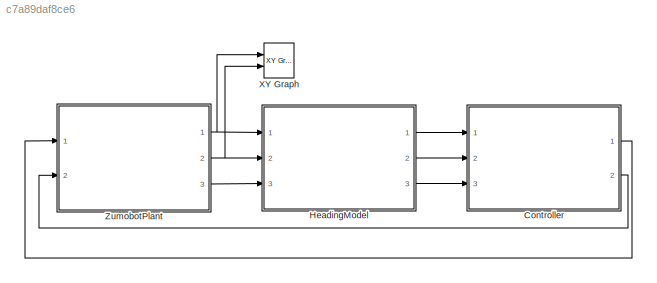
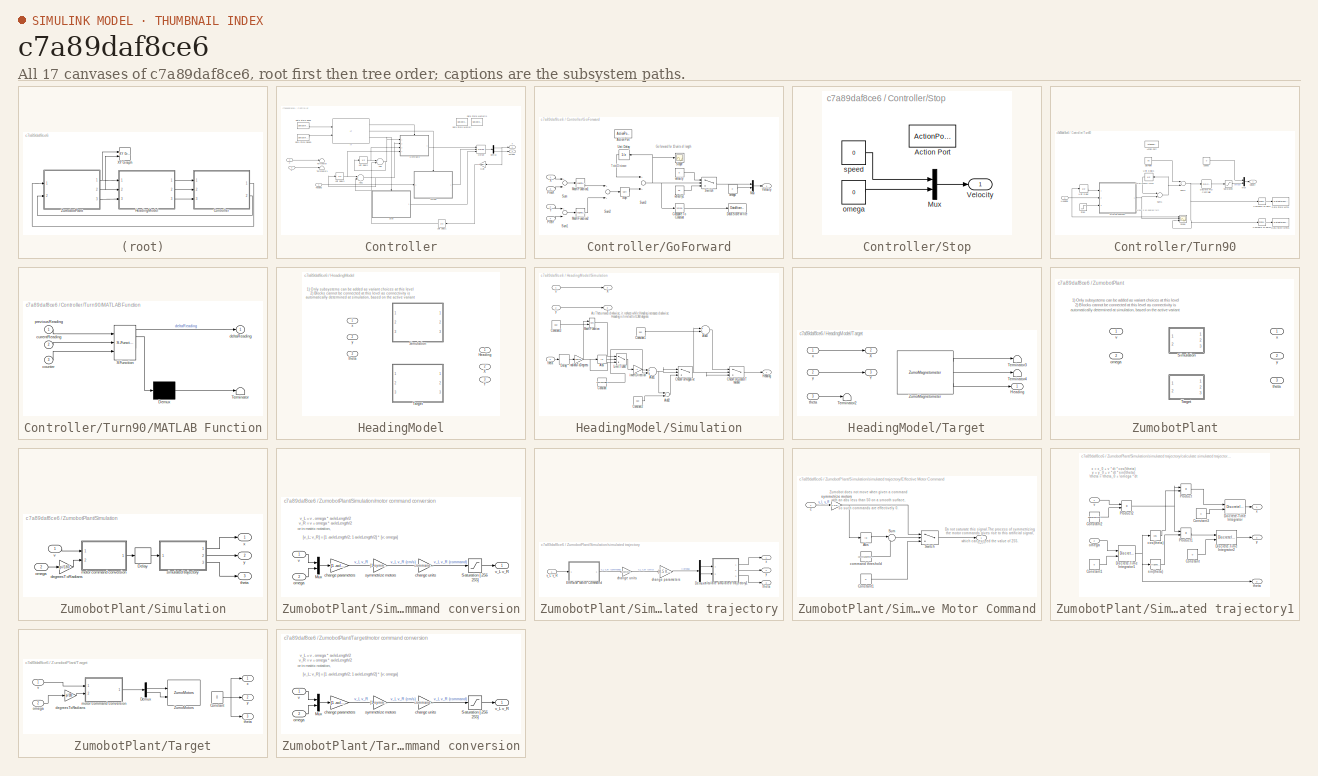
[diagram: thumbnail index - all 17 canvases of the model, root first then tree order]
MODEL slx_c7a89daf8ce6
KIND model
CONFIG PreLoadFcn = evalin('base','sim=1;');\nprepareCurrentFolderForZumo;\nload MagnetometerBus;
WORKSPACE source: MAT-file member
WORKSPACE MCOS: class17 (value not decoded)
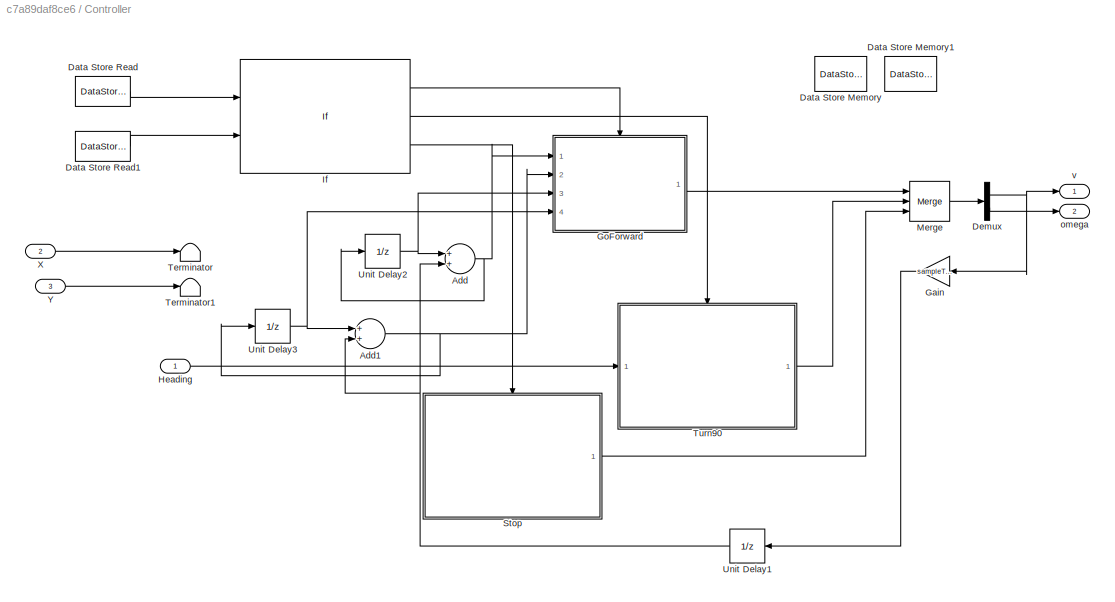
BLOCK [SubSystem] Controller
  Ports = [3, 2]
  RequestExecContextInheritance = off
BLOCK [Sum] Controller/Add
  InputSameDT = off
  OutDataTypeStr = Inherit: Inherit via internal rule
  Ports = [2, 1]
  SaturateOnIntegerOverflow = off
BLOCK [Sum] Controller/Add1
  InputSameDT = off
  OutDataTypeStr = Inherit: Inherit via internal rule
  Ports = [2, 1]
  SaturateOnIntegerOverflow = off
BLOCK [DataStoreMemory] Controller/Data Store Memory
  DataLogging = on
  DataStoreName = ACTION
  ReadBeforeWriteMsg = warning
  WriteAfterReadMsg = warning
  WriteAfterWriteMsg = warning
BLOCK [DataStoreMemory] Controller/Data Store Memory1
  DataLogging = on
  DataStoreName = COUNT
  ReadBeforeWriteMsg = warning
  WriteAfterReadMsg = warning
  WriteAfterWriteMsg = warning
BLOCK [DataStoreRead] Controller/Data Store Read
  DataStoreName = ACTION
  Ports = [0, 1]
  SampleTime = sampleTime
BLOCK [DataStoreRead] Controller/Data Store Read1
  DataStoreName = COUNT
  Ports = [0, 1]
  SampleTime = sampleTime
BLOCK [Demux] Controller/Demux
  DisplayOption = bar
  Outputs = 2
  Ports = [1, 2]
BLOCK [Gain] Controller/Gain
  Gain = sampleTime
  OutDataTypeStr = Inherit: Inherit via internal rule
  ParamDataTypeStr = Inherit: Inherit via internal rule
  SaturateOnIntegerOverflow = off
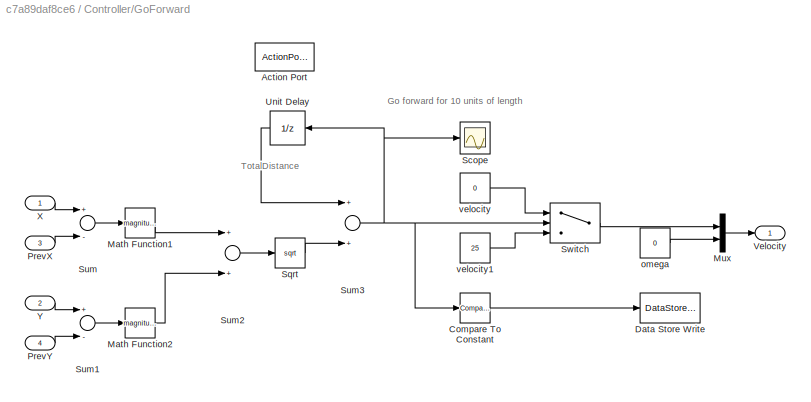
BLOCK [SubSystem] Controller/GoForward
  Ports = [4, 1, 0, 0, 0, 0, 0, 1]
  RequestExecContextInheritance = off
  TreatAsAtomicUnit = on
BLOCK [ActionPort] Controller/GoForward/Action Port
  ActionType = then
  InitializeStates = reset
BLOCK [Reference] Controller/GoForward/Compare To Constant  REF=simulink/Logic and Bit
Operations/Compare
To Constant
  OutDataTypeStr = boolean
  Ports = [1, 1]
  SourceBlock = simulink/Logic and Bit\nOperations/Compare\nTo Constant
  SourceType = Compare To Constant
  ZeroCross = on
  const = 10
  relop = >
BLOCK [DataStoreWrite] Controller/GoForward/Data Store Write
  DataStoreName = ACTION
  Ports = [1]
BLOCK [Math] Controller/GoForward/Math Function1
  Operator = magnitude^2
  Ports = [1, 1]
BLOCK [Math] Controller/GoForward/Math Function2
  Operator = magnitude^2
  Ports = [1, 1]
BLOCK [Mux] Controller/GoForward/Mux
  DisplayOption = bar
  Inputs = 2
  Ports = [2, 1]
BLOCK [Inport] Controller/GoForward/PrevX
  IconDisplay = Port number
  Port = 3
BLOCK [Inport] Controller/GoForward/PrevY
  IconDisplay = Port number
  Port = 4
BLOCK [Scope] Controller/GoForward/Scope
  DataFormat = StructureWithTime
  Floating = off
  NumInputPorts = 1
  Ports = [1]
  SampleTime = 0
  SaveName = ScopeData1
  ShowLegends = off
  YMax = 50
  YMin = 0
  ZoomMode = xonly
BLOCK [Sqrt] Controller/GoForward/Sqrt
BLOCK [Sum] Controller/GoForward/Sum
  InputSameDT = off
  Inputs = +-
  OutDataTypeStr = Inherit: Inherit via internal rule
  Ports = [2, 1]
  SaturateOnIntegerOverflow = off
BLOCK [Sum] Controller/GoForward/Sum1
  InputSameDT = off
  Inputs = +-
  OutDataTypeStr = Inherit: Inherit via internal rule
  Ports = [2, 1]
  SaturateOnIntegerOverflow = off
BLOCK [Sum] Controller/GoForward/Sum2
  InputSameDT = off
  OutDataTypeStr = Inherit: Inherit via internal rule
  Ports = [2, 1]
  SaturateOnIntegerOverflow = off
BLOCK [Sum] Controller/GoForward/Sum3
  InputSameDT = off
  OutDataTypeStr = Inherit: Inherit via internal rule
  Ports = [2, 1]
  SaturateOnIntegerOverflow = off
BLOCK [Switch] Controller/GoForward/Switch
  Criteria = u2 > Threshold
  InputSameDT = off
  SaturateOnIntegerOverflow = off
  Threshold = 10
BLOCK [UnitDelay] Controller/GoForward/Unit Delay
  InputProcessing = Elements as channels (sample based)
  SampleTime = -1
BLOCK [Outport] Controller/GoForward/Velocity
  IconDisplay = Port number
  InitialOutput = [0 0]
BLOCK [Inport] Controller/GoForward/X
  IconDisplay = Port number
BLOCK [Inport] Controller/GoForward/Y
  IconDisplay = Port number
  Port = 2
BLOCK [Constant] Controller/GoForward/omega
  Value = 0
BLOCK [Constant] Controller/GoForward/velocity
  Value = 0
BLOCK [Constant] Controller/GoForward/velocity1
  Value = 25
BLOCK [Inport] Controller/Heading
  IconDisplay = Port number
BLOCK [If] Controller/If
  ElseIfExpressions = u1 == 1, (u2==1 & u1==1)
  IfExpression = u1 == 0
  NumInputs = 2
  Ports = [2, 3]
  ShowElse = off
BLOCK [Merge] Controller/Merge
  InitialOutput = [0,0]
  Inputs = 3
  Ports = [3, 1]
BLOCK [SubSystem] Controller/Stop
  Ports = [0, 1, 0, 0, 0, 0, 0, 1]
  RequestExecContextInheritance = off
  TreatAsAtomicUnit = on
BLOCK [ActionPort] Controller/Stop/Action Port
  ActionType = elseif
  InitializeStates = reset
BLOCK [Mux] Controller/Stop/Mux
  DisplayOption = bar
  Inputs = 2
  Ports = [2, 1]
BLOCK [Outport] Controller/Stop/Velocity
  IconDisplay = Port number
  InitialOutput = [ 0 0 ]
BLOCK [Constant] Controller/Stop/omega
  Value = 0
BLOCK [Constant] Controller/Stop/speed
  Value = 0
BLOCK [Terminator] Controller/Terminator
BLOCK [Terminator] Controller/Terminator1
BLOCK [SubSystem] Controller/Turn90
  Ports = [1, 1, 0, 0, 0, 0, 0, 1]
  RequestExecContextInheritance = off
  TreatAsAtomicUnit = on
BLOCK [ActionPort] Controller/Turn90/Action Port
  ActionType = elseif
  InitializeStates = reset
BLOCK [Reference] Controller/Turn90/Compare To Zero  REF=simulink/Logic and Bit
Operations/Compare
To Zero
  OutDataTypeStr = boolean
  Ports = [1, 1]
  SourceBlock = simulink/Logic and Bit\nOperations/Compare\nTo Zero
  SourceType = Compare To Zero
  ZeroCross = on
  relop = >
BLOCK [Reference] Controller/Turn90/Compare To Zero1  REF=simulink/Logic and Bit
Operations/Compare
To Zero
  OutDataTypeStr = boolean
  Ports = [1, 1]
  SourceBlock = simulink/Logic and Bit\nOperations/Compare\nTo Zero
  SourceType = Compare To Zero
  ZeroCross = on
  relop = <
BLOCK [DataStoreWrite] Controller/Turn90/Data Store Write
  DataStoreName = ACTION
  Ports = [1]
BLOCK [DataStoreWrite] Controller/Turn90/Data Store Write1
  DataStoreName = COUNT
  Ports = [1]
BLOCK [Reference] Controller/Turn90/Discrete PID Controller  REF=simulink/Continuous/PID Controller
  AntiWindupMode = none
  Controller = PID
  D = 0
  DOutDataTypeStr = Inherit: Inherit via internal rule
  DOutMax = []
  DOutMin = []
  DParamDataTypeStr = Inherit: Inherit via internal rule
  DParamMax = []
  DParamMin = []
  DifferentiatorICPrevScaledInput = 0
  DifferentiatorOutDataTypeStr = Inherit: Inherit via internal rule
  DifferentiatorOutMax = []
  DifferentiatorOutMin = []
  ExternalReset = none
  FilterContinuousStateAttributes = ''
  FilterMethod = Forward Euler
  FilterOutDataTypeStr = Inherit: Inherit via internal rule
  FilterOutMax = []
  FilterOutMin = []
  FilterRTWStateStorageClass = Auto
  FilterStateMustResolveToSignalObject = off
  Form = Parallel
  I = 0
  IOutDataTypeStr = Inherit: Inherit via internal rule
  IOutMax = []
  IOutMin = []
  IParamDataTypeStr = Inherit: Inherit via internal rule
  IParamMax = []
  IParamMin = []
  IgnoreLimit = off
  InitialConditionForFilter = 0
  InitialConditionForIntegrator = 0
  InitialConditionSource = internal
  IntegratorContinuousStateAttributes = ''
  IntegratorMethod = Forward Euler
  IntegratorOutDataTypeStr = Inherit: Inherit via internal rule
  IntegratorOutMax = []
  IntegratorOutMin = []
  IntegratorRTWStateStorageClass = Auto
  IntegratorStateMustResolveToSignalObject = off
  Kb = 1
  KbOutDataTypeStr = Inherit: Inherit via internal rule
  KbOutMax = []
  KbOutMin = []
  KbParamDataTypeStr = Inherit: Inherit via internal rule
  KbParamMax = []
  KbParamMin = []
  Kt = 1
  KtOutDataTypeStr = Inherit: Inherit via internal rule
  KtOutMax = []
  KtOutMin = []
  KtParamDataTypeStr = Inherit: Inherit via internal rule
  KtParamMax = []
  KtParamMin = []
  LimitOutput = off
  LinearizeAsGain = off
  LockScale = off
  LowerSaturationLimit = -inf
  N = 100
  NOutDataTypeStr = Inherit: Inherit via internal rule
  NOutMax = []
  NOutMin = []
  NParamDataTypeStr = Inherit: Inherit via internal rule
  NParamMax = []
  NParamMin = []
  P = 100
  POutDataTypeStr = Inherit: Inherit via internal rule
  POutMax = []
  POutMin = []
  PParamDataTypeStr = Inherit: Inherit via internal rule
  PParamMax = []
  PParamMin = []
  Ports = [1, 1]
  RndMeth = Floor
  SampleTime = 0.01
  SaturateOnIntegerOverflow = off
  SaturationOutDataTypeStr = Inherit: Same as input
  SaturationOutMax = []
  SaturationOutMin = []
  SourceBlock = simulink/Continuous/PID Controller
  SourceType = PID 1dof
  SumAccumDataTypeStr = Inherit: Inherit via internal rule
  SumDAccumDataTypeStr = Inherit: Inherit via internal rule
  SumDOutDataTypeStr = Inherit: Inherit via internal rule
  SumDOutMax = []
  SumDOutMin = []
  SumI1AccumDataTypeStr = Inherit: Inherit via internal rule
  SumI1OutDataTypeStr = Inherit: Inherit via internal rule
  SumI1OutMax = []
  SumI1OutMin = []
  SumI2AccumDataTypeStr = Inherit: Inherit via internal rule
  SumI2OutDataTypeStr = Inherit: Inherit via internal rule
  SumI2OutMax = []
  SumI2OutMin = []
  SumI3AccumDataTypeStr = Inherit: Inherit via internal rule
  SumI3OutDataTypeStr = Inherit: Inherit via internal rule
  SumI3OutMax = []
  SumI3OutMin = []
  SumOutDataTypeStr = Inherit: Inherit via internal rule
  SumOutMax = []
  SumOutMin = []
  TimeDomain = Discrete-time
  TrackingMode = off
  UpperSaturationLimit = inf
  UseFilter = on
  ZeroCross = on
BLOCK [Inport] Controller/Turn90/Heading
  IconDisplay = Port number
BLOCK [SubSystem] Controller/Turn90/MATLAB Function
  ErrorFcn = Stateflow.Translate.translate
  PermitHierarchicalResolution = ExplicitOnly
  Ports = [3, 1]
  RequestExecContextInheritance = off
  SFBlockType = MATLAB Function
  TreatAsAtomicUnit = on
BLOCK [Demux] Controller/Turn90/MATLAB Function/ Demux 
  Outputs = 1
  Ports = [1, 1]
BLOCK [S-Function] Controller/Turn90/MATLAB Function/ SFunction 
  EnableBusSupport = off
  FunctionName = sf_sfun
  PortCounts = [3 2]
  Ports = [3, 2]
  Tag = Stateflow S-Function zumo_plant_custom_heading_original 2
BLOCK [Terminator] Controller/Turn90/MATLAB Function/ Terminator 
BLOCK [Inport] Controller/Turn90/MATLAB Function/counter
  IconDisplay = Port number
  Port = 3
BLOCK [Inport] Controller/Turn90/MATLAB Function/currentReading
  IconDisplay = Port number
  Port = 2
BLOCK [Outport] Controller/Turn90/MATLAB Function/deltaReading
  IconDisplay = Port number
BLOCK [Inport] Controller/Turn90/MATLAB Function/previousReading
  IconDisplay = Port number
BLOCK [Mux] Controller/Turn90/Mux
  DisplayOption = bar
  Inputs = 2
  Ports = [2, 1]
BLOCK [Saturate] Controller/Turn90/Saturation
  InputPortMap = u0
  LowerLimit = 0
  Ports = [1, 1]
  UpperLimit = 200
BLOCK [Scope] Controller/Turn90/Scope
  DataFormat = StructureWithTime
  Floating = off
  NumInputPorts = 3
  Ports = [3]
  SampleTime = 0
  ShowLegends = off
  YMax = 279.3~1~-3.8
  YMin = 252.7~-1~-4.2
  ZoomMode = yonly
BLOCK [Constant] Controller/Turn90/SetPoint
  Value = 90
BLOCK [Step] Controller/Turn90/Step
  SampleTime = sampleTime
  Time = 2*sampleTime
BLOCK [Sum] Controller/Turn90/Sum1
  InputSameDT = off
  OutDataTypeStr = Inherit: Inherit via internal rule
  Ports = [2, 1]
  SaturateOnIntegerOverflow = off
BLOCK [Sum] Controller/Turn90/Sum2
  InputSameDT = off
  Inputs = +-
  OutDataTypeStr = Inherit: Inherit via internal rule
  Ports = [2, 1]
  SaturateOnIntegerOverflow = off
BLOCK [UnitDelay] Controller/Turn90/Unit Delay
  InputProcessing = Elements as channels (sample based)
  SampleTime = -1
BLOCK [UnitDelay] Controller/Turn90/Unit Delay1
  InputProcessing = Elements as channels (sample based)
  SampleTime = -1
BLOCK [Outport] Controller/Turn90/Velocity
  IconDisplay = Port number
  InitialOutput = [0 0]
BLOCK [Constant] Controller/Turn90/speed
  Value = 0
BLOCK [UnitDelay] Controller/Unit Delay1
  InputProcessing = Elements as channels (sample based)
  SampleTime = -1
BLOCK [UnitDelay] Controller/Unit Delay2
  InputProcessing = Elements as channels (sample based)
  SampleTime = -1
BLOCK [UnitDelay] Controller/Unit Delay3
  InputProcessing = Elements as channels (sample based)
  SampleTime = -1
BLOCK [Inport] Controller/X
  IconDisplay = Port number
  Port = 2
BLOCK [Inport] Controller/Y
  IconDisplay = Port number
  Port = 3
BLOCK [Outport] Controller/omega
  IconDisplay = Port number
  Port = 2
BLOCK [Outport] Controller/v
  IconDisplay = Port number
BLOCK [SubSystem] HeadingModel
  Ports = [3, 3]
  RequestExecContextInheritance = off
  Variant = on
BLOCK [Outport] HeadingModel/Heading
  IconDisplay = Port number
BLOCK [SubSystem] HeadingModel/Simulation
  Ports = [3, 3]
  RequestExecContextInheritance = off
  VariantControl = sim==1
BLOCK [Abs] HeadingModel/Simulation/Abs
  SaturateOnIntegerOverflow = off
BLOCK [Sum] HeadingModel/Simulation/Add1
  InputSameDT = off
  OutDataTypeStr = Inherit: Inherit via internal rule
  Ports = [2, 1]
  SaturateOnIntegerOverflow = off
BLOCK [Sum] HeadingModel/Simulation/Add2
  InputSameDT = off
  OutDataTypeStr = Inherit: Inherit via internal rule
  Ports = [2, 1]
  SaturateOnIntegerOverflow = off
BLOCK [Sum] HeadingModel/Simulation/Add3
  InputSameDT = off
  Inputs = +-
  OutDataTypeStr = Inherit: Inherit via internal rule
  Ports = [2, 1]
  SaturateOnIntegerOverflow = off
BLOCK [Switch] HeadingModel/Simulation/CheckForGreaterThan360
  InputSameDT = off
  SaturateOnIntegerOverflow = off
  Threshold = 360
BLOCK [Switch] HeadingModel/Simulation/CheckForNegative
  InputSameDT = off
  SaturateOnIntegerOverflow = off
BLOCK [Constant] HeadingModel/Simulation/Constant
  Value = compassBias
BLOCK [Constant] HeadingModel/Simulation/Constant1
  Value = 360
BLOCK [Constant] HeadingModel/Simulation/Constant2
  Value = 360
BLOCK [Constant] HeadingModel/Simulation/Constant3
  Value = 360
BLOCK [Delay] HeadingModel/Simulation/Delay
  DelayLength = 1
  InitialCondition = 2*pi
  InputPortMap = u0
  Ports = [1, 1]
  SampleTime = sampleTime
BLOCK [Outport] HeadingModel/Simulation/Heading
  IconDisplay = Port number
BLOCK [Switch] HeadingModel/Simulation/LimitTo360
  InputSameDT = off
  SaturateOnIntegerOverflow = off
  Threshold = 360
BLOCK [Math] HeadingModel/Simulation/Math Function
  Operator = rem
  Ports = [2, 1]
BLOCK [Outport] HeadingModel/Simulation/X
  IconDisplay = Port number
  Port = 2
BLOCK [Outport] HeadingModel/Simulation/Y
  IconDisplay = Port number
  Port = 3
BLOCK [Gain] HeadingModel/Simulation/invertDirection
  Gain = -1
  OutDataTypeStr = Inherit: Inherit via internal rule
  ParamDataTypeStr = Inherit: Inherit via internal rule
  SaturateOnIntegerOverflow = off
BLOCK [Gain] HeadingModel/Simulation/radiansToDegrees
  Gain = 180/pi
  OutDataTypeStr = Inherit: Inherit via internal rule
  ParamDataTypeStr = Inherit: Inherit via internal rule
  SaturateOnIntegerOverflow = off
BLOCK [Inport] HeadingModel/Simulation/theta
  IconDisplay = Port number
  Port = 3
BLOCK [Inport] HeadingModel/Simulation/x
  IconDisplay = Port number
BLOCK [Inport] HeadingModel/Simulation/y
  IconDisplay = Port number
  Port = 2
BLOCK [SubSystem] HeadingModel/Target
  Ports = [3, 3]
  RequestExecContextInheritance = off
  VariantControl = sim==0
BLOCK [Outport] HeadingModel/Target/Heading
  IconDisplay = Port number
BLOCK [Terminator] HeadingModel/Target/Terminator2
BLOCK [Terminator] HeadingModel/Target/Terminator3
BLOCK [Terminator] HeadingModel/Target/Terminator4
BLOCK [Outport] HeadingModel/Target/X
  IconDisplay = Port number
  Port = 2
BLOCK [Outport] HeadingModel/Target/Y
  IconDisplay = Port number
  Port = 3
BLOCK [Reference] HeadingModel/Target/ZumoMagnetometer  REF=ZumoBotLib/ZumoMagnetometer
  Ports = [0, 3]
  SourceBlock = ZumoBotLib/ZumoMagnetometer
  SourceType = Zumo LSM303 Block
  debug_lsm = on
  maxX_lsm = -279
  maxY_lsm = 99
  maxZ_lsm = 1580
  minX_lsm = -512
  minY_lsm = -163
  minZ_lsm = 1302
  sampletime_lsm = 0.01
BLOCK [Inport] HeadingModel/Target/theta
  IconDisplay = Port number
  Port = 3
BLOCK [Inport] HeadingModel/Target/x
  IconDisplay = Port number
BLOCK [Inport] HeadingModel/Target/y
  IconDisplay = Port number
  Port = 2
BLOCK [Outport] HeadingModel/X
  IconDisplay = Port number
  Port = 2
BLOCK [Outport] HeadingModel/Y
  IconDisplay = Port number
  Port = 3
BLOCK [Inport] HeadingModel/theta
  IconDisplay = Port number
  Port = 3
BLOCK [Inport] HeadingModel/x
  IconDisplay = Port number
BLOCK [Inport] HeadingModel/y
  IconDisplay = Port number
  Port = 2
BLOCK [Reference] XY Graph  REF=simulink/Sinks/XY Graph
  Ports = [2]
  SourceBlock = simulink/Sinks/XY Graph
  SourceType = XY scope.
  st = -1
  xmax = 50
  xmin = -10
  ymax = 50
  ymin = -10
BLOCK [SubSystem] ZumobotPlant
  Ports = [2, 3]
  RequestExecContextInheritance = off
  Variant = on
BLOCK [SubSystem] ZumobotPlant/Simulation
  Ports = [2, 3]
  RequestExecContextInheritance = off
  VariantControl = sim==1
BLOCK [Delay] ZumobotPlant/Simulation/Delay
  DelayLength = 1
  InitialCondition = 0
  InputPortMap = u0
  Ports = [1, 1]
BLOCK [Gain] ZumobotPlant/Simulation/degreesToRadians
  Gain = pi/180
  OutDataTypeStr = Inherit: Inherit via internal rule
  ParamDataTypeStr = Inherit: Inherit via internal rule
  SaturateOnIntegerOverflow = off
BLOCK [SubSystem] ZumobotPlant/Simulation/motor command conversion
  Ports = [2, 1]
  RequestExecContextInheritance = off
BLOCK [Mux] ZumobotPlant/Simulation/motor command conversion/Mux
  DisplayOption = bar
  Inputs = 2
  Ports = [2, 1]
BLOCK [Saturate] ZumobotPlant/Simulation/motor command conversion/Saturation [-256 255]
  InputPortMap = u0
  LowerLimit = -256
  Ports = [1, 1]
  UpperLimit = 255
BLOCK [Gain] ZumobotPlant/Simulation/motor command conversion/change parameters
  Gain = [1 -axleLength/2; 1 axleLength/2]
  Multiplication = Matrix(K*u)
  OutDataTypeStr = Inherit: Inherit via internal rule
  ParamDataTypeStr = Inherit: Inherit via internal rule
  SaturateOnIntegerOverflow = off
BLOCK [Gain] ZumobotPlant/Simulation/motor command conversion/change units
  Gain = commandPercmPerSecond
  OutDataTypeStr = Inherit: Inherit via internal rule
  ParamDataTypeStr = Inherit: Inherit via internal rule
  SaturateOnIntegerOverflow = off
BLOCK [Inport] ZumobotPlant/Simulation/motor command conversion/omega
  IconDisplay = Port number
  Port = 2
BLOCK [Gain] ZumobotPlant/Simulation/motor command conversion/symmetrize motors
  Gain = [1 symmetrizeMotors]
  OutDataTypeStr = Inherit: Inherit via internal rule
  ParamDataTypeStr = Inherit: Inherit via internal rule
  SaturateOnIntegerOverflow = off
BLOCK [Inport] ZumobotPlant/Simulation/motor command conversion/v
  IconDisplay = Port number
BLOCK [Outport] ZumobotPlant/Simulation/motor command conversion/v_L v_R
  IconDisplay = Port number
BLOCK [Inport] ZumobotPlant/Simulation/omega
  IconDisplay = Port number
  Port = 2
BLOCK [SubSystem] ZumobotPlant/Simulation/simulated trajectory
  Ports = [1, 3]
  RequestExecContextInheritance = off
BLOCK [Demux] ZumobotPlant/Simulation/simulated trajectory/Demux
  DisplayOption = bar
  Outputs = 2
  Ports = [1, 2]
BLOCK [SubSystem] ZumobotPlant/Simulation/simulated trajectory/Effective Motor Command
  Ports = [1, 1]
  RequestExecContextInheritance = off
BLOCK [Abs] ZumobotPlant/Simulation/simulated trajectory/Effective Motor Command/Abs
  SaturateOnIntegerOverflow = off
BLOCK [Constant] ZumobotPlant/Simulation/simulated trajectory/Effective Motor Command/Constant1
  Value = 0
BLOCK [Sum] ZumobotPlant/Simulation/simulated trajectory/Effective Motor Command/Sum
  IconShape = round
  InputSameDT = off
  Inputs = |+-
  OutDataTypeStr = Inherit: Inherit via internal rule
  Ports = [2, 1]
  SaturateOnIntegerOverflow = off
BLOCK [Switch] ZumobotPlant/Simulation/simulated trajectory/Effective Motor Command/Switch
  InputSameDT = off
  SaturateOnIntegerOverflow = off
BLOCK [Inport] ZumobotPlant/Simulation/simulated trajectory/Effective Motor Command/c
  IconDisplay = Port number
BLOCK [Outport] ZumobotPlant/Simulation/simulated trajectory/Effective Motor Command/c_eff
  IconDisplay = Port number
BLOCK [Constant] ZumobotPlant/Simulation/simulated trajectory/Effective Motor Command/command threshold
  Value = commandThreshold
BLOCK [Gain] ZumobotPlant/Simulation/simulated trajectory/Effective Motor Command/symmetrize motors
  Gain = [1 1/symmetrizeMotors]
  OutDataTypeStr = Inherit: Inherit via internal rule
  ParamDataTypeStr = Inherit: Inherit via internal rule
  SaturateOnIntegerOverflow = off
BLOCK [SubSystem] ZumobotPlant/Simulation/simulated trajectory/calculate simulated trajectory1
  Ports = [2, 3]
  RequestExecContextInheritance = off
BLOCK [Constant] ZumobotPlant/Simulation/simulated trajectory/calculate simulated trajectory1/Constant
  Value = 0
BLOCK [Constant] ZumobotPlant/Simulation/simulated trajectory/calculate simulated trajectory1/Constant1
  Value = 0
BLOCK [Constant] ZumobotPlant/Simulation/simulated trajectory/calculate simulated trajectory1/Constant2
  Value = sampleTime
BLOCK [Constant] ZumobotPlant/Simulation/simulated trajectory/calculate simulated trajectory1/Constant3
  Value = 0
BLOCK [DiscreteIntegrator] ZumobotPlant/Simulation/simulated trajectory/calculate simulated trajectory1/Discrete-Time Integrator
  InitialConditionSetting = State (most efficient)
  InitialConditionSource = external
  IntegratorMethod = Accumulation: Forward Euler
  Ports = [2, 1]
  SampleTime = -1
BLOCK [DiscreteIntegrator] ZumobotPlant/Simulation/simulated trajectory/calculate simulated trajectory1/Discrete-Time Integrator1
  InitialConditionSource = external
  Ports = [2, 1]
  SampleTime = -1
BLOCK [DiscreteIntegrator] ZumobotPlant/Simulation/simulated trajectory/calculate simulated trajectory1/Discrete-Time Integrator2
  InitialConditionSetting = State (most efficient)
  InitialConditionSource = external
  IntegratorMethod = Accumulation: Forward Euler
  Ports = [2, 1]
  SampleTime = -1
BLOCK [Product] ZumobotPlant/Simulation/simulated trajectory/calculate simulated trajectory1/Product
  InputSameDT = off
  OutDataTypeStr = Inherit: Inherit via internal rule
  Ports = [2, 1]
  RndMeth = Floor
  SaturateOnIntegerOverflow = off
BLOCK [Product] ZumobotPlant/Simulation/simulated trajectory/calculate simulated trajectory1/Product1
  InputSameDT = off
  OutDataTypeStr = Inherit: Inherit via internal rule
  Ports = [2, 1]
  RndMeth = Floor
  SaturateOnIntegerOverflow = off
BLOCK [Product] ZumobotPlant/Simulation/simulated trajectory/calculate simulated trajectory1/Product2
  InputSameDT = off
  OutDataTypeStr = Inherit: Inherit via internal rule
  Ports = [2, 1]
  RndMeth = Floor
  SaturateOnIntegerOverflow = off
BLOCK [Trigonometry] ZumobotPlant/Simulation/simulated trajectory/calculate simulated trajectory1/cos(theta)
  Operator = cos
  Ports = [1, 1]
BLOCK [Inport] ZumobotPlant/Simulation/simulated trajectory/calculate simulated trajectory1/omega
  IconDisplay = Port number
  Port = 2
BLOCK [Trigonometry] ZumobotPlant/Simulation/simulated trajectory/calculate simulated trajectory1/sin(theta)
  Ports = [1, 1]
BLOCK [Outport] ZumobotPlant/Simulation/simulated trajectory/calculate simulated trajectory1/theta
  IconDisplay = Port number
  Port = 3
BLOCK [Inport] ZumobotPlant/Simulation/simulated trajectory/calculate simulated trajectory1/v
  IconDisplay = Port number
BLOCK [Outport] ZumobotPlant/Simulation/simulated trajectory/calculate simulated trajectory1/x
  IconDisplay = Port number
BLOCK [Outport] ZumobotPlant/Simulation/simulated trajectory/calculate simulated trajectory1/y
  IconDisplay = Port number
  Port = 2
BLOCK [Gain] ZumobotPlant/Simulation/simulated trajectory/change parameters
  Gain = [0.5 0.5; -1/axleLength 1/axleLength]
  Multiplication = Matrix(K*u)
  OutDataTypeStr = Inherit: Inherit via internal rule
  ParamDataTypeStr = Inherit: Inherit via internal rule
  SaturateOnIntegerOverflow = off
BLOCK [Gain] ZumobotPlant/Simulation/simulated trajectory/change units
  Gain = 1/commandPercmPerSecond
  OutDataTypeStr = Inherit: Inherit via internal rule
  ParamDataTypeStr = Inherit: Inherit via internal rule
  SaturateOnIntegerOverflow = off
BLOCK [Outport] ZumobotPlant/Simulation/simulated trajectory/theta
  IconDisplay = Port number
  Port = 3
BLOCK [Inport] ZumobotPlant/Simulation/simulated trajectory/v_L v_R
  IconDisplay = Port number
BLOCK [Outport] ZumobotPlant/Simulation/simulated trajectory/x
  IconDisplay = Port number
BLOCK [Outport] ZumobotPlant/Simulation/simulated trajectory/y
  IconDisplay = Port number
  Port = 2
BLOCK [Outport] ZumobotPlant/Simulation/theta
  IconDisplay = Port number
  Port = 3
BLOCK [Inport] ZumobotPlant/Simulation/v
  IconDisplay = Port number
BLOCK [Outport] ZumobotPlant/Simulation/x
  IconDisplay = Port number
BLOCK [Outport] ZumobotPlant/Simulation/y
  IconDisplay = Port number
  Port = 2
BLOCK [SubSystem] ZumobotPlant/Target
  Ports = [2, 3]
  RequestExecContextInheritance = off
  VariantControl = sim==0
BLOCK [Constant] ZumobotPlant/Target/Constant
  Value = 0
BLOCK [Demux] ZumobotPlant/Target/Demux
  DisplayOption = bar
  Outputs = 2
  Ports = [1, 2]
BLOCK [Reference] ZumobotPlant/Target/ZumoMotors  REF=ZumoBotLib/ZumoMotors
  Ports = [2]
  SourceBlock = ZumoBotLib/ZumoMotors
  SourceType = Zumo Motors
  flipLeft = off
  flipRight = off
BLOCK [Gain] ZumobotPlant/Target/degreesToRadians
  Gain = pi/180
  OutDataTypeStr = Inherit: Inherit via internal rule
  ParamDataTypeStr = Inherit: Inherit via internal rule
  SaturateOnIntegerOverflow = off
BLOCK [SubSystem] ZumobotPlant/Target/motor command conversion
  Ports = [2, 1]
  RequestExecContextInheritance = off
BLOCK [Mux] ZumobotPlant/Target/motor command conversion/Mux
  DisplayOption = bar
  Inputs = 2
  Ports = [2, 1]
BLOCK [Saturate] ZumobotPlant/Target/motor command conversion/Saturation [-256 255]
  InputPortMap = u0
  LowerLimit = -256
  Ports = [1, 1]
  UpperLimit = 255
BLOCK [Gain] ZumobotPlant/Target/motor command conversion/change parameters
  Gain = [1 -axleLength/2; 1 axleLength/2]
  Multiplication = Matrix(K*u)
  OutDataTypeStr = Inherit: Inherit via internal rule
  ParamDataTypeStr = Inherit: Inherit via internal rule
  SaturateOnIntegerOverflow = off
BLOCK [Gain] ZumobotPlant/Target/motor command conversion/change units
  Gain = commandPercmPerSecond
  OutDataTypeStr = Inherit: Inherit via internal rule
  ParamDataTypeStr = Inherit: Inherit via internal rule
  SaturateOnIntegerOverflow = off
BLOCK [Inport] ZumobotPlant/Target/motor command conversion/omega
  IconDisplay = Port number
  Port = 2
BLOCK [Gain] ZumobotPlant/Target/motor command conversion/symmetrize motors
  Gain = [1 symmetrizeMotors]
  OutDataTypeStr = Inherit: Inherit via internal rule
  ParamDataTypeStr = Inherit: Inherit via internal rule
  SaturateOnIntegerOverflow = off
BLOCK [Inport] ZumobotPlant/Target/motor command conversion/v
  IconDisplay = Port number
BLOCK [Outport] ZumobotPlant/Target/motor command conversion/v_L v_R
  IconDisplay = Port number
BLOCK [Inport] ZumobotPlant/Target/omega
  IconDisplay = Port number
  Port = 2
BLOCK [Outport] ZumobotPlant/Target/theta
  IconDisplay = Port number
  Port = 3
BLOCK [Inport] ZumobotPlant/Target/v
  IconDisplay = Port number
BLOCK [Outport] ZumobotPlant/Target/x
  IconDisplay = Port number
BLOCK [Outport] ZumobotPlant/Target/y
  IconDisplay = Port number
  Port = 2
BLOCK [Inport] ZumobotPlant/omega
  IconDisplay = Port number
  Port = 2
BLOCK [Outport] ZumobotPlant/theta
  IconDisplay = Port number
  Port = 3
BLOCK [Inport] ZumobotPlant/v
  IconDisplay = Port number
BLOCK [Outport] ZumobotPlant/x
  IconDisplay = Port number
BLOCK [Outport] ZumobotPlant/y
  IconDisplay = Port number
  Port = 2
ANNOTATION Controller/GoForward: Go forward for 10 units of length
ANNOTATION Controller/GoForward: TotalDistance
ANNOTATION Controller/Turn90: Make a 90 degree turn
ANNOTATION Controller/Turn90: TotalHeadingChange
ANNOTATION HeadingModel: 1) Only subsystems can be added as variant choices at this level 2) Blocks cannot be connected at this level as connectivity is automatically determined at simulation, based on the active variant
ANNOTATION HeadingModel/Simulation: As Theta moves clockwise, it reduces while Heading increases clockwise. Heading is limited to 0-360 degress
ANNOTATION ZumobotPlant: 1) Only subsystems can be added as variant choices at this level 2) Blocks cannot be connected at this level as connectivity is automatically determined at simulation, based on the active variant
ANNOTATION ZumobotPlant/Simulation/motor command conversion: [v_L; v_R] = [1 -axleLength/2; 1 axleLength/2] * [v; omega]
ANNOTATION ZumobotPlant/Simulation/motor command conversion: or in matrix notation,
ANNOTATION ZumobotPlant/Simulation/motor command conversion: v_L = v - omega * axleLength/2 v_R = v + omega * axleLength/2
ANNOTATION ZumobotPlant/Simulation/simulated trajectory/Effective Motor Command: Do not saturate this signal.The process of symmetrizing the motor commands gives rise to this artificial signal, which can exceed the value of 255.
ANNOTATION ZumobotPlant/Simulation/simulated trajectory/Effective Motor Command: Zumobot does not move when given a command with an abs less than 50 on a smooth surface, so such commands are effectively 0.
ANNOTATION ZumobotPlant/Simulation/simulated trajectory/calculate simulated trajectory1: x = x_0 + v * dt * cos(\theta) y = y_0 + v * dt * sin(\theta) \theta = \theta_0 + \omega * dt
ANNOTATION ZumobotPlant/Target/motor command conversion: [v_L; v_R] = [1 -axleLength/2; 1 axleLength/2] * [v; omega]
ANNOTATION ZumobotPlant/Target/motor command conversion: or in matrix notation,
ANNOTATION ZumobotPlant/Target/motor command conversion: v_L = v - omega * axleLength/2 v_R = v + omega * axleLength/2
NET Controller/Add1:1 -> Controller/GoForward:2, Controller/Unit Delay3:1
NET Controller/Add:1 -> Controller/GoForward:1, Controller/Unit Delay2:1
LINE Controller/Data Store Read1:1 -> Controller/If:2
LINE Controller/Data Store Read:1 -> Controller/If:1
NET Controller/Demux:1 -> Controller/Gain:1, Controller/v:1
LINE Controller/Demux:2 -> Controller/omega:1
LINE Controller/Gain:1 -> Controller/Unit Delay1:1
LINE Controller/GoForward/Compare To Constant:1 -> Controller/GoForward/Data Store Write:1
LINE Controller/GoForward/Math Function1:1 -> Controller/GoForward/Sum2:1
LINE Controller/GoForward/Math Function2:1 -> Controller/GoForward/Sum2:2
LINE Controller/GoForward/Mux:1 -> Controller/GoForward/Velocity:1
LINE Controller/GoForward/PrevX:1 -> Controller/GoForward/Sum:2
LINE Controller/GoForward/PrevY:1 -> Controller/GoForward/Sum1:2
LINE Controller/GoForward/Sqrt:1 -> Controller/GoForward/Sum3:2
LINE Controller/GoForward/Sum1:1 -> Controller/GoForward/Math Function2:1
LINE Controller/GoForward/Sum2:1 -> Controller/GoForward/Sqrt:1
NET Controller/GoForward/Sum3:1 -> Controller/GoForward/Compare To Constant:1, Controller/GoForward/Scope:1, Controller/GoForward/Switch:2, Controller/GoForward/Unit Delay:1
LINE Controller/GoForward/Sum:1 -> Controller/GoForward/Math Function1:1
LINE Controller/GoForward/Switch:1 -> Controller/GoForward/Mux:1
LINE Controller/GoForward/Unit Delay:1 -> Controller/GoForward/Sum3:1
LINE Controller/GoForward/X:1 -> Controller/GoForward/Sum:1
LINE Controller/GoForward/Y:1 -> Controller/GoForward/Sum1:1
LINE Controller/GoForward/omega:1 -> Controller/GoForward/Mux:2
LINE Controller/GoForward/velocity1:1 -> Controller/GoForward/Switch:3
LINE Controller/GoForward/velocity:1 -> Controller/GoForward/Switch:1
LINE Controller/GoForward:1 -> Controller/Merge:1
LINE Controller/Heading:1 -> Controller/Turn90:1
LINE Controller/If:1 -> Controller/GoForward:ifaction
LINE Controller/If:2 -> Controller/Turn90:ifaction
LINE Controller/If:3 -> Controller/Stop:ifaction
LINE Controller/Merge:1 -> Controller/Demux:1
LINE Controller/Stop/Mux:1 -> Controller/Stop/Velocity:1
LINE Controller/Stop/omega:1 -> Controller/Stop/Mux:2
LINE Controller/Stop/speed:1 -> Controller/Stop/Mux:1
LINE Controller/Stop:1 -> Controller/Merge:3
LINE Controller/Turn90/Compare To Zero1:1 -> Controller/Turn90/Data Store Write1:1
LINE Controller/Turn90/Compare To Zero:1 -> Controller/Turn90/Data Store Write:1
LINE Controller/Turn90/Discrete PID Controller:1 -> Controller/Turn90/Saturation:1
NET Controller/Turn90/Heading:1 -> Controller/Turn90/MATLAB Function:2, Controller/Turn90/Scope:1, Controller/Turn90/Unit Delay:1
NET Controller/Turn90/MATLAB Function:1 -> Controller/Turn90/Scope:2, Controller/Turn90/Sum1:2
LINE Controller/Turn90/Mux:1 -> Controller/Turn90/Velocity:1
LINE Controller/Turn90/Saturation:1 -> Controller/Turn90/Mux:2
LINE Controller/Turn90/SetPoint:1 -> Controller/Turn90/Sum2:1
LINE Controller/Turn90/Step:1 -> Controller/Turn90/MATLAB Function:3
NET Controller/Turn90/Sum1:1 -> Controller/Turn90/Sum2:2, Controller/Turn90/Unit Delay1:1
NET Controller/Turn90/Sum2:1 -> Controller/Turn90/Compare To Zero1:1, Controller/Turn90/Compare To Zero:1, Controller/Turn90/Discrete PID Controller:1, Controller/Turn90/Scope:3
LINE Controller/Turn90/Unit Delay1:1 -> Controller/Turn90/Sum1:1
LINE Controller/Turn90/Unit Delay:1 -> Controller/Turn90/MATLAB Function:1
LINE Controller/Turn90/speed:1 -> Controller/Turn90/Mux:1
LINE Controller/Turn90:1 -> Controller/Merge:2
NET Controller/Unit Delay1:1 -> Controller/Add1:2, Controller/Add:2
NET Controller/Unit Delay2:1 -> Controller/Add:1, Controller/GoForward:3
NET Controller/Unit Delay3:1 -> Controller/Add1:1, Controller/GoForward:4
LINE Controller/X:1 -> Controller/Terminator:1
LINE Controller/Y:1 -> Controller/Terminator1:1
LINE Controller:1 -> ZumobotPlant:1
LINE Controller:2 -> ZumobotPlant:2
LINE HeadingModel/Simulation/Abs:1 -> HeadingModel/Simulation/LimitTo360:2
NET HeadingModel/Simulation/Add1:1 -> HeadingModel/Simulation/Add2:1, HeadingModel/Simulation/CheckForNegative:1, HeadingModel/Simulation/CheckForNegative:2
LINE HeadingModel/Simulation/Add2:1 -> HeadingModel/Simulation/CheckForNegative:3
LINE HeadingModel/Simulation/Add3:1 -> HeadingModel/Simulation/CheckForGreaterThan360:1
LINE HeadingModel/Simulation/CheckForGreaterThan360:1 -> HeadingModel/Simulation/Heading:1
NET HeadingModel/Simulation/CheckForNegative:1 -> HeadingModel/Simulation/Add3:1, HeadingModel/Simulation/CheckForGreaterThan360:2, HeadingModel/Simulation/CheckForGreaterThan360:3
LINE HeadingModel/Simulation/Constant1:1 -> HeadingModel/Simulation/Add3:2
LINE HeadingModel/Simulation/Constant2:1 -> HeadingModel/Simulation/Add2:2
LINE HeadingModel/Simulation/Constant3:1 -> HeadingModel/Simulation/Math Function:2
LINE HeadingModel/Simulation/Constant:1 -> HeadingModel/Simulation/Add1:2
LINE HeadingModel/Simulation/Delay:1 -> HeadingModel/Simulation/radiansToDegrees:1
LINE HeadingModel/Simulation/LimitTo360:1 -> HeadingModel/Simulation/invertDirection:1
LINE HeadingModel/Simulation/Math Function:1 -> HeadingModel/Simulation/LimitTo360:1
LINE HeadingModel/Simulation/invertDirection:1 -> HeadingModel/Simulation/Add1:1
NET HeadingModel/Simulation/radiansToDegrees:1 -> HeadingModel/Simulation/Abs:1, HeadingModel/Simulation/LimitTo360:3, HeadingModel/Simulation/Math Function:1
LINE HeadingModel/Simulation/theta:1 -> HeadingModel/Simulation/Delay:1
LINE HeadingModel/Simulation/x:1 -> HeadingModel/Simulation/X:1
LINE HeadingModel/Simulation/y:1 -> HeadingModel/Simulation/Y:1
LINE HeadingModel/Target/ZumoMagnetometer:1 -> HeadingModel/Target/Terminator3:1
LINE HeadingModel/Target/ZumoMagnetometer:2 -> HeadingModel/Target/Terminator4:1
LINE HeadingModel/Target/ZumoMagnetometer:3 -> HeadingModel/Target/Heading:1
LINE HeadingModel/Target/theta:1 -> HeadingModel/Target/Terminator2:1
LINE HeadingModel/Target/x:1 -> HeadingModel/Target/X:1
LINE HeadingModel/Target/y:1 -> HeadingModel/Target/Y:1
LINE HeadingModel:1 -> Controller:1
LINE HeadingModel:2 -> Controller:2
LINE HeadingModel:3 -> Controller:3
LINE ZumobotPlant/Simulation/Delay:1 -> ZumobotPlant/Simulation/simulated trajectory:1
LINE ZumobotPlant/Simulation/degreesToRadians:1 -> ZumobotPlant/Simulation/motor command conversion:2
LINE ZumobotPlant/Simulation/motor command conversion/Mux:1 -> ZumobotPlant/Simulation/motor command conversion/change parameters:1
LINE ZumobotPlant/Simulation/motor command conversion/Saturation [-256 255]:1 -> ZumobotPlant/Simulation/motor command conversion/v_L v_R:1
LINE ZumobotPlant/Simulation/motor command conversion/change parameters:1 -> ZumobotPlant/Simulation/motor command conversion/symmetrize motors:1
LINE ZumobotPlant/Simulation/motor command conversion/change units:1 -> ZumobotPlant/Simulation/motor command conversion/Saturation [-256 255]:1
LINE ZumobotPlant/Simulation/motor command conversion/omega:1 -> ZumobotPlant/Simulation/motor command conversion/Mux:2
LINE ZumobotPlant/Simulation/motor command conversion/symmetrize motors:1 -> ZumobotPlant/Simulation/motor command conversion/change units:1
LINE ZumobotPlant/Simulation/motor command conversion/v:1 -> ZumobotPlant/Simulation/motor command conversion/Mux:1
LINE ZumobotPlant/Simulation/motor command conversion:1 -> ZumobotPlant/Simulation/Delay:1
LINE ZumobotPlant/Simulation/omega:1 -> ZumobotPlant/Simulation/degreesToRadians:1
LINE ZumobotPlant/Simulation/simulated trajectory/Demux:1 -> ZumobotPlant/Simulation/simulated trajectory/calculate simulated trajectory1:1
LINE ZumobotPlant/Simulation/simulated trajectory/Demux:2 -> ZumobotPlant/Simulation/simulated trajectory/calculate simulated trajectory1:2
LINE ZumobotPlant/Simulation/simulated trajectory/Effective Motor Command/Abs:1 -> ZumobotPlant/Simulation/simulated trajectory/Effective Motor Command/Sum:1
LINE ZumobotPlant/Simulation/simulated trajectory/Effective Motor Command/Constant1:1 -> ZumobotPlant/Simulation/simulated trajectory/Effective Motor Command/Switch:3
LINE ZumobotPlant/Simulation/simulated trajectory/Effective Motor Command/Sum:1 -> ZumobotPlant/Simulation/simulated trajectory/Effective Motor Command/Switch:2
LINE ZumobotPlant/Simulation/simulated trajectory/Effective Motor Command/Switch:1 -> ZumobotPlant/Simulation/simulated trajectory/Effective Motor Command/c_eff:1
LINE ZumobotPlant/Simulation/simulated trajectory/Effective Motor Command/c:1 -> ZumobotPlant/Simulation/simulated trajectory/Effective Motor Command/symmetrize motors:1
LINE ZumobotPlant/Simulation/simulated trajectory/Effective Motor Command/command threshold:1 -> ZumobotPlant/Simulation/simulated trajectory/Effective Motor Command/Sum:2
NET ZumobotPlant/Simulation/simulated trajectory/Effective Motor Command/symmetrize motors:1 -> ZumobotPlant/Simulation/simulated trajectory/Effective Motor Command/Abs:1, ZumobotPlant/Simulation/simulated trajectory/Effective Motor Command/Switch:1
LINE ZumobotPlant/Simulation/simulated trajectory/Effective Motor Command:1 -> ZumobotPlant/Simulation/simulated trajectory/change units:1
LINE ZumobotPlant/Simulation/simulated trajectory/calculate simulated trajectory1/Constant1:1 -> ZumobotPlant/Simulation/simulated trajectory/calculate simulated trajectory1/Discrete-Time Integrator1:2
LINE ZumobotPlant/Simulation/simulated trajectory/calculate simulated trajectory1/Constant2:1 -> ZumobotPlant/Simulation/simulated trajectory/calculate simulated trajectory1/Product2:2
LINE ZumobotPlant/Simulation/simulated trajectory/calculate simulated trajectory1/Constant3:1 -> ZumobotPlant/Simulation/simulated trajectory/calculate simulated trajectory1/Discrete-Time Integrator:2
LINE ZumobotPlant/Simulation/simulated trajectory/calculate simulated trajectory1/Constant:1 -> ZumobotPlant/Simulation/simulated trajectory/calculate simulated trajectory1/Discrete-Time Integrator2:2
NET ZumobotPlant/Simulation/simulated trajectory/calculate simulated trajectory1/Discrete-Time Integrator1:1 -> ZumobotPlant/Simulation/simulated trajectory/calculate simulated trajectory1/cos(theta):1, ZumobotPlant/Simulation/simulated trajectory/calculate simulated trajectory1/sin(theta):1, ZumobotPlant/Simulation/simulated trajectory/calculate simulated trajectory1/theta:1
LINE ZumobotPlant/Simulation/simulated trajectory/calculate simulated trajectory1/Discrete-Time Integrator2:1 -> ZumobotPlant/Simulation/simulated trajectory/calculate simulated trajectory1/y:1
LINE ZumobotPlant/Simulation/simulated trajectory/calculate simulated trajectory1/Discrete-Time Integrator:1 -> ZumobotPlant/Simulation/simulated trajectory/calculate simulated trajectory1/x:1
LINE ZumobotPlant/Simulation/simulated trajectory/calculate simulated trajectory1/Product1:1 -> ZumobotPlant/Simulation/simulated trajectory/calculate simulated trajectory1/Discrete-Time Integrator2:1
NET ZumobotPlant/Simulation/simulated trajectory/calculate simulated trajectory1/Product2:1 -> ZumobotPlant/Simulation/simulated trajectory/calculate simulated trajectory1/Product1:1, ZumobotPlant/Simulation/simulated trajectory/calculate simulated trajectory1/Product:1
LINE ZumobotPlant/Simulation/simulated trajectory/calculate simulated trajectory1/Product:1 -> ZumobotPlant/Simulation/simulated trajectory/calculate simulated trajectory1/Discrete-Time Integrator:1
LINE ZumobotPlant/Simulation/simulated trajectory/calculate simulated trajectory1/cos(theta):1 -> ZumobotPlant/Simulation/simulated trajectory/calculate simulated trajectory1/Product:2
LINE ZumobotPlant/Simulation/simulated trajectory/calculate simulated trajectory1/omega:1 -> ZumobotPlant/Simulation/simulated trajectory/calculate simulated trajectory1/Discrete-Time Integrator1:1
LINE ZumobotPlant/Simulation/simulated trajectory/calculate simulated trajectory1/sin(theta):1 -> ZumobotPlant/Simulation/simulated trajectory/calculate simulated trajectory1/Product1:2
LINE ZumobotPlant/Simulation/simulated trajectory/calculate simulated trajectory1/v:1 -> ZumobotPlant/Simulation/simulated trajectory/calculate simulated trajectory1/Product2:1
LINE ZumobotPlant/Simulation/simulated trajectory/calculate simulated trajectory1:1 -> ZumobotPlant/Simulation/simulated trajectory/x:1
LINE ZumobotPlant/Simulation/simulated trajectory/calculate simulated trajectory1:2 -> ZumobotPlant/Simulation/simulated trajectory/y:1
LINE ZumobotPlant/Simulation/simulated trajectory/calculate simulated trajectory1:3 -> ZumobotPlant/Simulation/simulated trajectory/theta:1
LINE ZumobotPlant/Simulation/simulated trajectory/change parameters:1 -> ZumobotPlant/Simulation/simulated trajectory/Demux:1
LINE ZumobotPlant/Simulation/simulated trajectory/change units:1 -> ZumobotPlant/Simulation/simulated trajectory/change parameters:1
LINE ZumobotPlant/Simulation/simulated trajectory/v_L v_R:1 -> ZumobotPlant/Simulation/simulated trajectory/Effective Motor Command:1
LINE ZumobotPlant/Simulation/simulated trajectory:1 -> ZumobotPlant/Simulation/x:1
LINE ZumobotPlant/Simulation/simulated trajectory:2 -> ZumobotPlant/Simulation/y:1
LINE ZumobotPlant/Simulation/simulated trajectory:3 -> ZumobotPlant/Simulation/theta:1
LINE ZumobotPlant/Simulation/v:1 -> ZumobotPlant/Simulation/motor command conversion:1
NET ZumobotPlant/Target/Constant:1 -> ZumobotPlant/Target/theta:1, ZumobotPlant/Target/x:1, ZumobotPlant/Target/y:1
LINE ZumobotPlant/Target/Demux:1 -> ZumobotPlant/Target/ZumoMotors:1
LINE ZumobotPlant/Target/Demux:2 -> ZumobotPlant/Target/ZumoMotors:2
LINE ZumobotPlant/Target/degreesToRadians:1 -> ZumobotPlant/Target/motor command conversion:2
LINE ZumobotPlant/Target/motor command conversion/Mux:1 -> ZumobotPlant/Target/motor command conversion/change parameters:1
LINE ZumobotPlant/Target/motor command conversion/Saturation [-256 255]:1 -> ZumobotPlant/Target/motor command conversion/v_L v_R:1
LINE ZumobotPlant/Target/motor command conversion/change parameters:1 -> ZumobotPlant/Target/motor command conversion/symmetrize motors:1
LINE ZumobotPlant/Target/motor command conversion/change units:1 -> ZumobotPlant/Target/motor command conversion/Saturation [-256 255]:1
LINE ZumobotPlant/Target/motor command conversion/omega:1 -> ZumobotPlant/Target/motor command conversion/Mux:2
LINE ZumobotPlant/Target/motor command conversion/symmetrize motors:1 -> ZumobotPlant/Target/motor command conversion/change units:1
LINE ZumobotPlant/Target/motor command conversion/v:1 -> ZumobotPlant/Target/motor command conversion/Mux:1
LINE ZumobotPlant/Target/motor command conversion:1 -> ZumobotPlant/Target/Demux:1
LINE ZumobotPlant/Target/omega:1 -> ZumobotPlant/Target/degreesToRadians:1
LINE ZumobotPlant/Target/v:1 -> ZumobotPlant/Target/motor command conversion:1
NET ZumobotPlant:1 -> HeadingModel:1, XY Graph:1
NET ZumobotPlant:2 -> HeadingModel:2, XY Graph:2
LINE ZumobotPlant:3 -> HeadingModel:3
note: NET lines group one-source signal fan-out (src -> all destinations, sorted); 1:1 wires keep LINE
CHART Controller/Turn90/MATLAB Function states=1 transitions=1
  STATE_LABEL 'eML_blk_kernel()'
  STATE_LABEL 'SCRIPT:\nfunction deltaReading = handle360jump(previousReading, currentReading, counter)\n%#codegen\ndeltaReading = 0;\nif counter\n    deltaReading = currentReading - previousReading;\n    if abs(deltaReading) > 300\n        if deltaReading > 0\n            deltaReading = 360 - currentReading + previousReading;\n        else\n            deltaReading = 360 + deltaReading;\n        end\n    end\nend\ndeltaReadi...<+23ch>'
